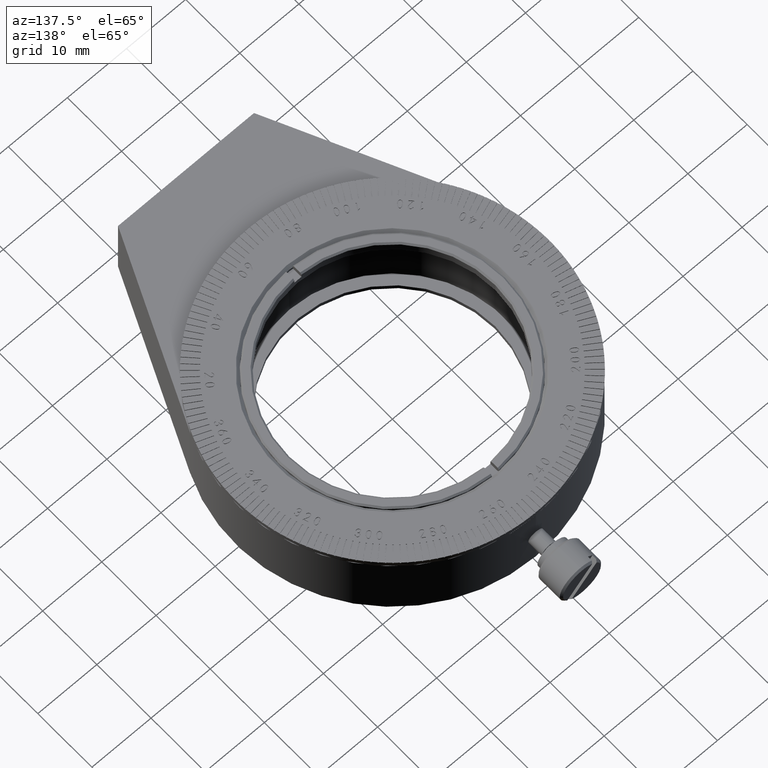
[diagram: clean part render]
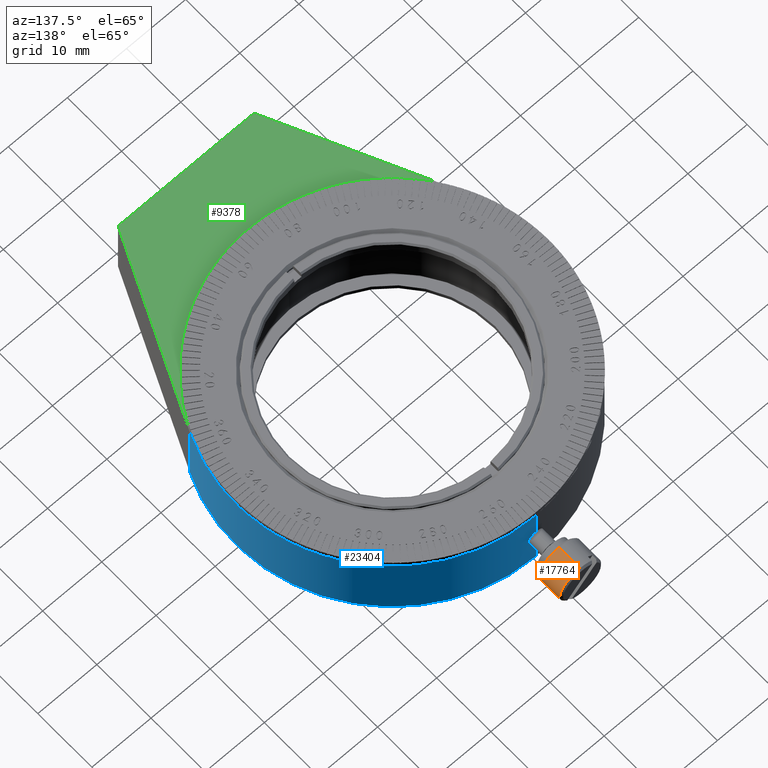
[diagram: same view with three faces highlighted in distinct colors, each labeled with its STEP entity id]
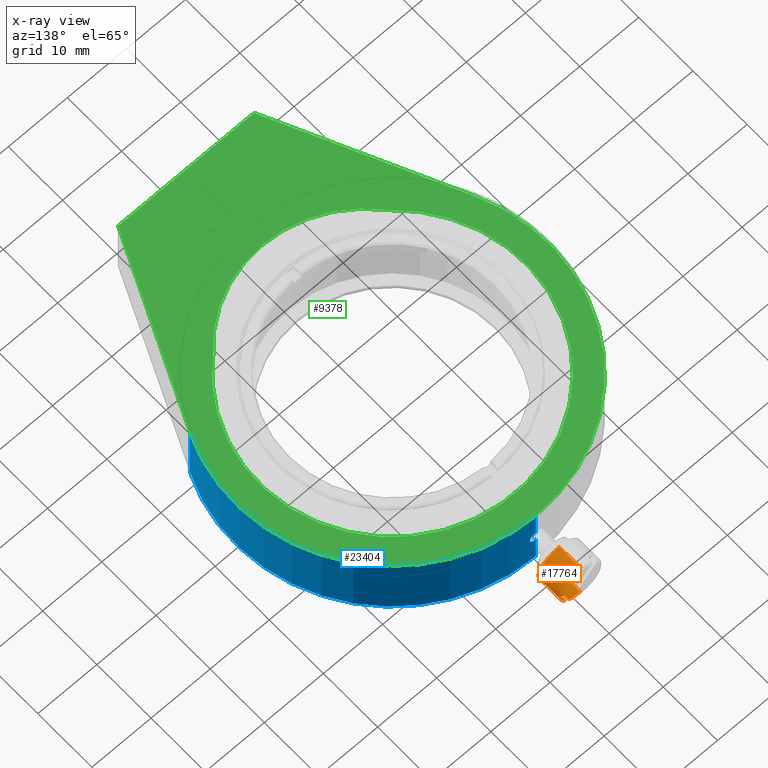
[diagram: x-ray of the same camera — body ghosted, the three highlighted faces saturated]
A machine part, auxiliary view with three faces highlighted in distinct colors.
The next image is the same camera in x-ray (body ghosted, the three faces saturated) — at least one of them is partly hidden behind the body in this view.
Their STEP definitions:

[orange] entity #17764 — the highlighted cylindrical surface (edge-blend (fillet) strip) has radius 3.5 mm, axis along (0, -1, -0).
#575 = CARTESIAN_POINT ( 'NONE',  ( 0.000000000000000000, 35.00000000000000000, 2.499999999999997335 ) ) ;
#1969 = EDGE_CURVE ( 'NONE', #14425, #4733, #52591, .T. ) ;
#2676 = CARTESIAN_POINT ( 'NONE',  ( 2.677996532062950852, 34.00000000000000000, 3.746483952961767727 ) ) ;
#3158 = VERTEX_POINT ( 'NONE', #2676 ) ;
#3410 = ORIENTED_EDGE ( 'NONE', *, *, #58421, .F. ) ;
#3590 = DIRECTION ( 'NONE',  ( 0.000000000000000000, 0.000000000000000000, -1.000000000000000000 ) ) ;
#4733 = VERTEX_POINT ( 'NONE', #49072 ) ;
#6341 = AXIS2_PLACEMENT_3D ( 'NONE', #52628, #57050, #9105 ) ;
#8188 = EDGE_CURVE ( 'NONE', #58953, #8528, #40552, .T. ) ;
#8528 = VERTEX_POINT ( 'NONE', #59212 ) ;
#9105 = DIRECTION ( 'NONE',  ( 0.000000000000000000, 0.000000000000000000, -1.000000000000000000 ) ) ;
#9240 = FACE_OUTER_BOUND ( 'NONE', #42810, .T. ) ;
#10865 = CARTESIAN_POINT ( 'NONE',  ( 0.000000000000000000, 34.00000000000000000, 5.999999999999997335 ) ) ;
#11131 = DIRECTION ( 'NONE',  ( -0.000000000000000000, -1.000000000000000000, -0.000000000000000000 ) ) ;
#12045 = EDGE_CURVE ( 'NONE', #4733, #48229, #59083, .T. ) ;
#13532 = DIRECTION ( 'NONE',  ( 0.000000000000000000, 0.000000000000000000, -1.000000000000000000 ) ) ;
#14425 = VERTEX_POINT ( 'NONE', #47590 ) ;
#15091 = EDGE_CURVE ( 'NONE', #14425, #8528, #48518, .T. ) ;
#15879 = CARTESIAN_POINT ( 'NONE',  ( 1.931432708037199353, 34.00000000000000000, 3.081170149816178760 ) ) ;
#17764 = ADVANCED_FACE ( 'NONE', ( #9240 ), #28491, .T. ) ;
#19574 = VERTEX_POINT ( 'NONE', #52881 ) ;
#19636 = CARTESIAN_POINT ( 'NONE',  ( 0.000000000000000000, 35.00000000000000000, 5.999999999999997335 ) ) ;
#19990 = ORIENTED_EDGE ( 'NONE', *, *, #42494, .T. ) ;
#22899 = ORIENTED_EDGE ( 'NONE', *, *, #12045, .T. ) ;
#25376 = DIRECTION ( 'NONE',  ( -0.000000000000000000, 1.000000000000000000, 0.000000000000000000 ) ) ;
#26117 = CARTESIAN_POINT ( 'NONE',  ( 4.286263797015736595E-16, 35.00000000000000000, 9.499999999999998224 ) ) ;
#28491 = CYLINDRICAL_SURFACE ( 'NONE', #55104, 3.500000000000000000 ) ;
#28582 = EDGE_CURVE ( 'NONE', #19574, #49220, #29224, .T. ) ;
#29224 = CIRCLE ( 'NONE', #57465, 3.500000000000000000 ) ;
#29397 = DIRECTION ( 'NONE',  ( 0.000000000000000000, -1.000000000000000000, -0.000000000000000000 ) ) ;
#29413 = EDGE_CURVE ( 'NONE', #3158, #19574, #51466, .T. ) ;
#31662 = DIRECTION ( 'NONE',  ( 0.000000000000000000, -1.000000000000000000, -0.000000000000000000 ) ) ;
#32690 = CARTESIAN_POINT ( 'NONE',  ( 1.931432708037199131, 34.00000000000000000, 3.081170149816178760 ) ) ;
#33697 = CARTESIAN_POINT ( 'NONE',  ( 4.286263797015736102E-16, 34.70000000000000284, 9.499999999999998224 ) ) ;
#34218 = DIRECTION ( 'NONE',  ( 0.000000000000000000, -1.000000000000000000, -0.000000000000000000 ) ) ;
#34934 = ORIENTED_EDGE ( 'NONE', *, *, #28582, .T. ) ;
#35073 = VECTOR ( 'NONE', #11131, 1000.000000000000000 ) ;
#38961 = CARTESIAN_POINT ( 'NONE',  ( 0.000000000000000000, 34.70000000000000284, 5.999999999999997335 ) ) ;
#40552 = CIRCLE ( 'NONE', #6341, 3.500000000000000000 ) ;
#40814 = CARTESIAN_POINT ( 'NONE',  ( 0.000000000000000000, 34.70000000000000284, 5.999999999999997335 ) ) ;
#41482 = ORIENTED_EDGE ( 'NONE', *, *, #29413, .T. ) ;
#42494 = EDGE_CURVE ( 'NONE', #49220, #58953, #58924, .T. ) ;
#42808 = ORIENTED_EDGE ( 'NONE', *, *, #8188, .T. ) ;
#42810 = EDGE_LOOP ( 'NONE', ( #34934, #19990, #42808, #57871, #48792, #22899, #3410, #41482 ) ) ;
#44037 = CIRCLE ( 'NONE', #53132, 3.500000000000000000 ) ;
#44304 = DIRECTION ( 'NONE',  ( 2.664535259100375697E-15, 0.000000000000000000, -1.000000000000000000 ) ) ;
#44395 = VECTOR ( 'NONE', #59987, 1000.000000000000000 ) ;
#44715 = DIRECTION ( 'NONE',  ( 0.000000000000000000, -1.000000000000000000, -0.000000000000000000 ) ) ;
#47590 = CARTESIAN_POINT ( 'NONE',  ( 0.000000000000000000, 34.70000000000000284, 2.499999999978536724 ) ) ;
#48028 = DIRECTION ( 'NONE',  ( 0.000000000000000000, 0.000000000000000000, -1.000000000000000000 ) ) ;
#48229 = VERTEX_POINT ( 'NONE', #32690 ) ;
#48518 = LINE ( 'NONE', #575, #62169 ) ;
#48792 = ORIENTED_EDGE ( 'NONE', *, *, #1969, .T. ) ;
#49072 = CARTESIAN_POINT ( 'NONE',  ( 1.931432708040768054, 34.70000000000542428, 3.081170149812174408 ) ) ;
#49124 = CARTESIAN_POINT ( 'NONE',  ( 0.000000000000000000, 30.80000000000000071, 9.499999999951256768 ) ) ;
#49220 = VERTEX_POINT ( 'NONE', #33697 ) ;
#50409 = DIRECTION ( 'NONE',  ( 0.000000000000000000, -1.000000000000000000, -0.000000000000000000 ) ) ;
#51466 = LINE ( 'NONE', #60309, #44395 ) ;
#51605 = AXIS2_PLACEMENT_3D ( 'NONE', #38961, #34218, #13532 ) ;
#52591 = CIRCLE ( 'NONE', #51605, 3.500000000000000000 ) ;
#52628 = CARTESIAN_POINT ( 'NONE',  ( 0.000000000000000000, 30.80000000000000071, 5.999999999999997335 ) ) ;
#52881 = CARTESIAN_POINT ( 'NONE',  ( 2.677996532062950852, 34.70000000001073914, 3.746483952961767727 ) ) ;
#53132 = AXIS2_PLACEMENT_3D ( 'NONE', #10865, #25376, #44304 ) ;
#54363 = VECTOR ( 'NONE', #50409, 1000.000000000000000 ) ;
#55104 = AXIS2_PLACEMENT_3D ( 'NONE', #19636, #29397, #48028 ) ;
#57050 = DIRECTION ( 'NONE',  ( -0.000000000000000000, 1.000000000000000000, 0.000000000000000000 ) ) ;
#57465 = AXIS2_PLACEMENT_3D ( 'NONE', #40814, #31662, #3590 ) ;
#57871 = ORIENTED_EDGE ( 'NONE', *, *, #15091, .F. ) ;
#58421 = EDGE_CURVE ( 'NONE', #3158, #48229, #44037, .T. ) ;
#58924 = LINE ( 'NONE', #26117, #54363 ) ;
#58953 = VERTEX_POINT ( 'NONE', #49124 ) ;
#59083 = LINE ( 'NONE', #15879, #35073 ) ;
#59212 = CARTESIAN_POINT ( 'NONE',  ( 4.286263796956046448E-16, 30.80000000000000071, 2.500000000048737459 ) ) ;
#59987 = DIRECTION ( 'NONE',  ( -0.000000000000000000, 1.000000000000000000, 0.000000000000000000 ) ) ;
#60309 = CARTESIAN_POINT ( 'NONE',  ( 2.677996532062950852, 34.00000000000000000, 3.746483952961767283 ) ) ;
#62169 = VECTOR ( 'NONE', #44715, 1000.000000000000000 ) ;

[blue] entity #23404 — the highlighted cylindrical surface (partial cylindrical patch) has radius 26.5 mm, axis along (-0, -0, -1).
#1252 = AXIS2_PLACEMENT_3D ( 'NONE', #58405, #21184, #30644 ) ;
#3778 = ORIENTED_EDGE ( 'NONE', *, *, #13393, .T. ) ;
#3914 = CARTESIAN_POINT ( 'NONE',  ( 0.8195109481563340736, 26.48749389738177484, 6.629990812159185509 ) ) ;
#5670 = EDGE_CURVE ( 'NONE', #55347, #25795, #62452, .T. ) ;
#5884 = DIRECTION ( 'NONE',  ( -1.776356839400250465E-15, 1.000000000000000000, -1.309225264888156130E-16 ) ) ;
#6501 = LINE ( 'NONE', #26679, #9797 ) ;
#6702 = CARTESIAN_POINT ( 'NONE',  ( 0.000000000000000000, 1.469576158976824144E-15, 12.00000000000000000 ) ) ;
#7797 = EDGE_CURVE ( 'NONE', #26177, #25795, #20379, .T. ) ;
#9797 = VECTOR ( 'NONE', #11850, 1000.000000000000000 ) ;
#9852 = DIRECTION ( 'NONE',  ( -0.000000000000000000, -1.224646799147353207E-16, -1.000000000000000000 ) ) ;
#10980 = VECTOR ( 'NONE', #9852, 1000.000000000000000 ) ;
#11555 = CARTESIAN_POINT ( 'NONE',  ( 24.02631552150645433, -11.17972103681563745, 12.00000000000000178 ) ) ;
#11827 = B_SPLINE_CURVE_WITH_KNOTS ( 'NONE', 3,
 ( #56270, #32291, #27577, #61322, #18109, #55016, #14603, #24372, #27889, #57501, #3914, #13985, #61633, #52469 ),
 .UNSPECIFIED., .F., .F.,
 ( 4, 2, 2, 2, 2, 2, 4 ),
 ( 0.001601362205218323509, 0.002001703464502028063, 0.002402044723785732618, 0.003202727242353143461, 0.003603068501636849316, 0.004003409760920555172, 0.004804092279487966015 ),
 .UNSPECIFIED. ) ;
#11850 = DIRECTION ( 'NONE',  ( -0.000000000000000000, -1.224646799147353207E-16, -1.000000000000000000 ) ) ;
#12469 = EDGE_LOOP ( 'NONE', ( #16349, #46676, #3778, #59925, #21518, #53956 ) ) ;
#13393 = EDGE_CURVE ( 'NONE', #55081, #26177, #62240, .T. ) ;
#13985 = CARTESIAN_POINT ( 'NONE',  ( 0.5361026715221063332, 26.49525086798620066, 6.913600238506551143 ) ) ;
#14603 = CARTESIAN_POINT ( 'NONE',  ( 1.024999999999995026, 26.48016946698037799, 5.729261785740254354 ) ) ;
#14935 = VECTOR ( 'NONE', #24881, 1000.000000000000000 ) ;
#16349 = ORIENTED_EDGE ( 'NONE', *, *, #20863, .F. ) ;
#18109 = CARTESIAN_POINT ( 'NONE',  ( 0.6299907347584466910, 26.49267928175030917, 5.180488966079060731 ) ) ;
#20379 = CIRCLE ( 'NONE', #1252, 26.50000000000000355 ) ;
#20863 = EDGE_CURVE ( 'NONE', #23078, #35321, #6501, .T. ) ;
#21184 = DIRECTION ( 'NONE',  ( 0.000000000000000000, 1.224646799147353207E-16, 1.000000000000000000 ) ) ;
#21518 = ORIENTED_EDGE ( 'NONE', *, *, #5670, .F. ) ;
#23078 = VERTEX_POINT ( 'NONE', #28286 ) ;
#23404 = ADVANCED_FACE ( 'NONE', ( #35387 ), #49916, .T. ) ;
#24372 = CARTESIAN_POINT ( 'NONE',  ( 1.024999999999995026, 26.48016946698037444, 6.135369107129865718 ) ) ;
#24881 = DIRECTION ( 'NONE',  ( -0.000000000000000000, -1.224646799147353207E-16, -1.000000000000000000 ) ) ;
#25795 = VERTEX_POINT ( 'NONE', #37931 ) ;
#26177 = VERTEX_POINT ( 'NONE', #33742 ) ;
#26679 = CARTESIAN_POINT ( 'NONE',  ( 0.000000000000000000, 26.50000000000000355, 11.99999999999999645 ) ) ;
#27577 = CARTESIAN_POINT ( 'NONE',  ( 0.2681977790135594564, 26.49893331622442361, 5.001636374338043645 ) ) ;
#27700 = AXIS2_PLACEMENT_3D ( 'NONE', #6702, #58430, #45178 ) ;
#27889 = CARTESIAN_POINT ( 'NONE',  ( 0.9983634368747416055, 26.48123704113752197, 6.268198391812126680 ) ) ;
#28286 = CARTESIAN_POINT ( 'NONE',  ( 0.000000000000000000, 26.50000000000000355, 11.99999999999999645 ) ) ;
#30644 = DIRECTION ( 'NONE',  ( -1.776356839400250465E-15, 1.000000000000000000, -1.224646799147353207E-16 ) ) ;
#32291 = CARTESIAN_POINT ( 'NONE',  ( 0.1353692655068165496, 26.50000000000000355, 4.975000000000001421 ) ) ;
#33742 = CARTESIAN_POINT ( 'NONE',  ( 24.02631552150645433, -11.17972103681563922, 1.551922217143233491E-15 ) ) ;
#33783 = EDGE_CURVE ( 'NONE', #55081, #23078, #49673, .T. ) ;
#33954 = DIRECTION ( 'NONE',  ( 0.000000000000000000, 1.224646799147353207E-16, 1.000000000000000000 ) ) ;
#35321 = VERTEX_POINT ( 'NONE', #54999 ) ;
#35387 = FACE_OUTER_BOUND ( 'NONE', #12469, .T. ) ;
#37931 = CARTESIAN_POINT ( 'NONE',  ( 0.000000000000000000, 26.50000000000000355, -3.245314017740486159E-15 ) ) ;
#37934 = CARTESIAN_POINT ( 'NONE',  ( 24.02631552150645433, -11.17972103681563922, 12.00000000000000178 ) ) ;
#38588 = AXIS2_PLACEMENT_3D ( 'NONE', #58238, #33954, #5884 ) ;
#45178 = DIRECTION ( 'NONE',  ( 0.000000000000000000, 1.000000000000000000, -1.309225264888156130E-16 ) ) ;
#46676 = ORIENTED_EDGE ( 'NONE', *, *, #33783, .F. ) ;
#47636 = EDGE_CURVE ( 'NONE', #55347, #35321, #11827, .T. ) ;
#48246 = CARTESIAN_POINT ( 'NONE',  ( 0.000000000000000000, 26.50000000000000355, 11.99999999999999645 ) ) ;
#49673 = CIRCLE ( 'NONE', #38588, 26.50000000000000355 ) ;
#49916 = CYLINDRICAL_SURFACE ( 'NONE', #27700, 26.50000000000000355 ) ;
#52469 = CARTESIAN_POINT ( 'NONE',  ( 2.387290121296612019E-13, 26.50000000000000355, 7.024999999999992362 ) ) ;
#53152 = CARTESIAN_POINT ( 'NONE',  ( 0.000000000000000000, 26.50000000000000355, 4.975000000000002309 ) ) ;
#53956 = ORIENTED_EDGE ( 'NONE', *, *, #47636, .T. ) ;
#54999 = CARTESIAN_POINT ( 'NONE',  ( 2.387290121296612019E-13, 26.50000000000000355, 7.024999999999992362 ) ) ;
#55016 = CARTESIAN_POINT ( 'NONE',  ( 0.9136004902273295869, 26.48492230591795504, 5.463897596857646199 ) ) ;
#55081 = VERTEX_POINT ( 'NONE', #11555 ) ;
#55347 = VERTEX_POINT ( 'NONE', #53152 ) ;
#56270 = CARTESIAN_POINT ( 'NONE',  ( 0.000000000000000000, 26.50000000000000355, 4.975000000000002309 ) ) ;
#57501 = CARTESIAN_POINT ( 'NONE',  ( 0.8955742603222611731, 26.48491252629032644, 6.516339688293658838 ) ) ;
#58238 = CARTESIAN_POINT ( 'NONE',  ( 0.000000000000000000, 1.469576158976824144E-15, 12.00000000000000000 ) ) ;
#58405 = CARTESIAN_POINT ( 'NONE',  ( 0.000000000000000000, 1.925929944387235853E-31, 0.000000000000000000 ) ) ;
#58430 = DIRECTION ( 'NONE',  ( -0.000000000000000000, -1.224646799147353207E-16, -1.000000000000000000 ) ) ;
#59925 = ORIENTED_EDGE ( 'NONE', *, *, #7797, .T. ) ;
#61322 = CARTESIAN_POINT ( 'NONE',  ( 0.5163394534580988404, 26.49525977444227465, 5.104425577344190224 ) ) ;
#61633 = CARTESIAN_POINT ( 'NONE',  ( 0.2707391696837998518, 26.49999999999999645, 7.024999999999929301 ) ) ;
#62240 = LINE ( 'NONE', #37934, #10980 ) ;
#62452 = LINE ( 'NONE', #48246, #14935 ) ;

[green] entity #9378 — the highlighted planar face has unit normal (0, 0, 1).
#633 = DIRECTION ( 'NONE',  ( 0.000000000000000000, 1.000000000000000000, -1.309225264888156130E-16 ) ) ;
#1042 = VECTOR ( 'NONE', #61312, 1000.000000000000000 ) ;
#2509 = ORIENTED_EDGE ( 'NONE', *, *, #19854, .T. ) ;
#2553 = CARTESIAN_POINT ( 'NONE',  ( 14.71051919546008868, -17.02500000000001279, 12.00000000000000000 ) ) ;
#2610 = ORIENTED_EDGE ( 'NONE', *, *, #8027, .T. ) ;
#5884 = DIRECTION ( 'NONE',  ( -1.776356839400250465E-15, 1.000000000000000000, -1.309225264888156130E-16 ) ) ;
#6031 = EDGE_CURVE ( 'NONE', #32504, #55081, #47245, .T. ) ;
#8027 = EDGE_CURVE ( 'NONE', #23078, #49266, #25473, .T. ) ;
#8839 = EDGE_CURVE ( 'NONE', #49266, #31130, #58211, .T. ) ;
#8912 = CARTESIAN_POINT ( 'NONE',  ( 6.123233995736765296E-16, -4.999999999999998224, 12.00000000000000000 ) ) ;
#9378 = ADVANCED_FACE ( 'NONE', ( #15546, #24390 ), #58133, .T. ) ;
#11555 = CARTESIAN_POINT ( 'NONE',  ( 24.02631552150645433, -11.17972103681563745, 12.00000000000000178 ) ) ;
#12084 = CARTESIAN_POINT ( 'NONE',  ( 0.000000000000000000, 1.469576158976823947E-15, 12.00000000000000000 ) ) ;
#12627 = ORIENTED_EDGE ( 'NONE', *, *, #8839, .T. ) ;
#13046 = LINE ( 'NONE', #21585, #1042 ) ;
#13350 = ORIENTED_EDGE ( 'NONE', *, *, #6031, .T. ) ;
#13508 = CARTESIAN_POINT ( 'NONE',  ( -14.71051919546008868, -17.02500000000001279, 12.00000000000000000 ) ) ;
#14671 = ORIENTED_EDGE ( 'NONE', *, *, #15858, .T. ) ;
#14822 = EDGE_LOOP ( 'NONE', ( #33429, #2509, #14671 ) ) ;
#15006 = CARTESIAN_POINT ( 'NONE',  ( -24.02631552150645433, -11.17972103681564100, 12.00000000000000178 ) ) ;
#15546 = FACE_OUTER_BOUND ( 'NONE', #46683, .T. ) ;
#15856 = DIRECTION ( 'NONE',  ( 0.000000000000000000, 1.224646799147353207E-16, 1.000000000000000000 ) ) ;
#15858 = EDGE_CURVE ( 'NONE', #18372, #26598, #54121, .T. ) ;
#18372 = VERTEX_POINT ( 'NONE', #50604 ) ;
#19854 = EDGE_CURVE ( 'NONE', #37446, #18372, #57178, .T. ) ;
#21113 = CARTESIAN_POINT ( 'NONE',  ( 0.000000000000000000, 1.469576158976824144E-15, 12.00000000000000000 ) ) ;
#21142 = EDGE_CURVE ( 'NONE', #26598, #37446, #37984, .T. ) ;
#21217 = CARTESIAN_POINT ( 'NONE',  ( -11.49999999999999467, -38.10000000000000142, 12.00000000000000533 ) ) ;
#21585 = CARTESIAN_POINT ( 'NONE',  ( 0.000000000000000000, -38.10000000000000142, 12.00000000000000533 ) ) ;
#23078 = VERTEX_POINT ( 'NONE', #28286 ) ;
#24390 = FACE_BOUND ( 'NONE', #14822, .T. ) ;
#25473 = CIRCLE ( 'NONE', #60741, 26.50000000000000355 ) ;
#26598 = VERTEX_POINT ( 'NONE', #13508 ) ;
#26604 = DIRECTION ( 'NONE',  ( 0.000000000000000000, -1.000000000000000000, 1.541976423090494894E-16 ) ) ;
#26961 = AXIS2_PLACEMENT_3D ( 'NONE', #34161, #53404, #29439 ) ;
#27528 = VECTOR ( 'NONE', #34226, 1000.000000000000114 ) ;
#28286 = CARTESIAN_POINT ( 'NONE',  ( 0.000000000000000000, 26.50000000000000355, 11.99999999999999645 ) ) ;
#28536 = EDGE_CURVE ( 'NONE', #31130, #32504, #13046, .T. ) ;
#28748 = ORIENTED_EDGE ( 'NONE', *, *, #28536, .T. ) ;
#29070 = DIRECTION ( 'NONE',  ( -0.000000000000000000, -1.224646799147353207E-16, -1.000000000000000000 ) ) ;
#29439 = DIRECTION ( 'NONE',  ( 0.000000000000000000, -1.000000000000000000, 9.130123557772668334E-17 ) ) ;
#31130 = VERTEX_POINT ( 'NONE', #21217 ) ;
#31321 = DIRECTION ( 'NONE',  ( -0.000000000000000000, -1.224646799147353207E-16, -1.000000000000000000 ) ) ;
#32504 = VERTEX_POINT ( 'NONE', #35250 ) ;
#33052 = ORIENTED_EDGE ( 'NONE', *, *, #33783, .T. ) ;
#33429 = ORIENTED_EDGE ( 'NONE', *, *, #21142, .T. ) ;
#33783 = EDGE_CURVE ( 'NONE', #55081, #23078, #49673, .T. ) ;
#33851 = CARTESIAN_POINT ( 'NONE',  ( 0.000000000000000000, 1.469576158976824144E-15, 12.00000000000000000 ) ) ;
#33954 = DIRECTION ( 'NONE',  ( 0.000000000000000000, 1.224646799147353207E-16, 1.000000000000000000 ) ) ;
#33955 = AXIS2_PLACEMENT_3D ( 'NONE', #12084, #31321, #26604 ) ;
#34161 = CARTESIAN_POINT ( 'NONE',  ( 6.123233995736765296E-16, -4.999999999999998224, 12.00000000000000000 ) ) ;
#34226 = DIRECTION ( 'NONE',  ( 0.4218762655402129580, -0.9066534159059037590, 1.168481921972246538E-16 ) ) ;
#34771 = DIRECTION ( 'NONE',  ( 0.000000000000000000, -1.000000000000000000, 1.224646799147353207E-16 ) ) ;
#35250 = CARTESIAN_POINT ( 'NONE',  ( 11.50000000000000355, -38.10000000000000142, 12.00000000000000533 ) ) ;
#35417 = AXIS2_PLACEMENT_3D ( 'NONE', #33851, #15856, #34771 ) ;
#37090 = VECTOR ( 'NONE', #46312, 1000.000000000000114 ) ;
#37446 = VERTEX_POINT ( 'NONE', #2553 ) ;
#37984 = CIRCLE ( 'NONE', #33955, 22.50000000000000355 ) ;
#38038 = AXIS2_PLACEMENT_3D ( 'NONE', #8912, #29070, #51810 ) ;
#38588 = AXIS2_PLACEMENT_3D ( 'NONE', #58238, #33954, #5884 ) ;
#39351 = CARTESIAN_POINT ( 'NONE',  ( -24.02631552150645788, -11.17972103681564455, 12.00000000000000178 ) ) ;
#41892 = CARTESIAN_POINT ( 'NONE',  ( 11.50000000000000533, -38.10000000000000142, 12.00000000000000533 ) ) ;
#43842 = DIRECTION ( 'NONE',  ( 0.000000000000000000, 1.224646799147353207E-16, 1.000000000000000000 ) ) ;
#46312 = DIRECTION ( 'NONE',  ( 0.4218762655402126249, 0.9066534159059038700, -1.168481921972246538E-16 ) ) ;
#46683 = EDGE_LOOP ( 'NONE', ( #28748, #13350, #33052, #2610, #12627 ) ) ;
#47245 = LINE ( 'NONE', #41892, #37090 ) ;
#49266 = VERTEX_POINT ( 'NONE', #39351 ) ;
#49673 = CIRCLE ( 'NONE', #38588, 26.50000000000000355 ) ;
#50604 = CARTESIAN_POINT ( 'NONE',  ( 6.123233995736765296E-16, -23.99999999999999645, 12.00000000000000178 ) ) ;
#51810 = DIRECTION ( 'NONE',  ( 0.000000000000000000, -1.000000000000000000, 9.130123557772668334E-17 ) ) ;
#53404 = DIRECTION ( 'NONE',  ( -0.000000000000000000, -1.224646799147353207E-16, -1.000000000000000000 ) ) ;
#54121 = CIRCLE ( 'NONE', #26961, 19.00000000000000000 ) ;
#55081 = VERTEX_POINT ( 'NONE', #11555 ) ;
#57178 = CIRCLE ( 'NONE', #38038, 19.00000000000000000 ) ;
#58133 = PLANE ( 'NONE',  #35417 ) ;
#58211 = LINE ( 'NONE', #15006, #27528 ) ;
#58238 = CARTESIAN_POINT ( 'NONE',  ( 0.000000000000000000, 1.469576158976824144E-15, 12.00000000000000000 ) ) ;
#60741 = AXIS2_PLACEMENT_3D ( 'NONE', #21113, #43842, #633 ) ;
#61312 = DIRECTION ( 'NONE',  ( 1.000000000000000000, 0.000000000000000000, -0.000000000000000000 ) ) ;